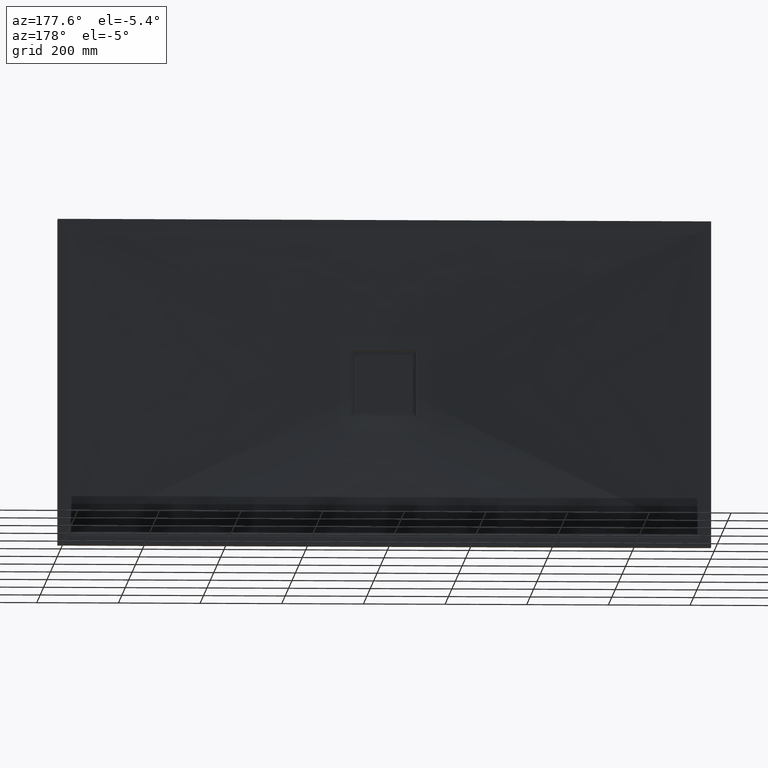
[diagram: clean part render]
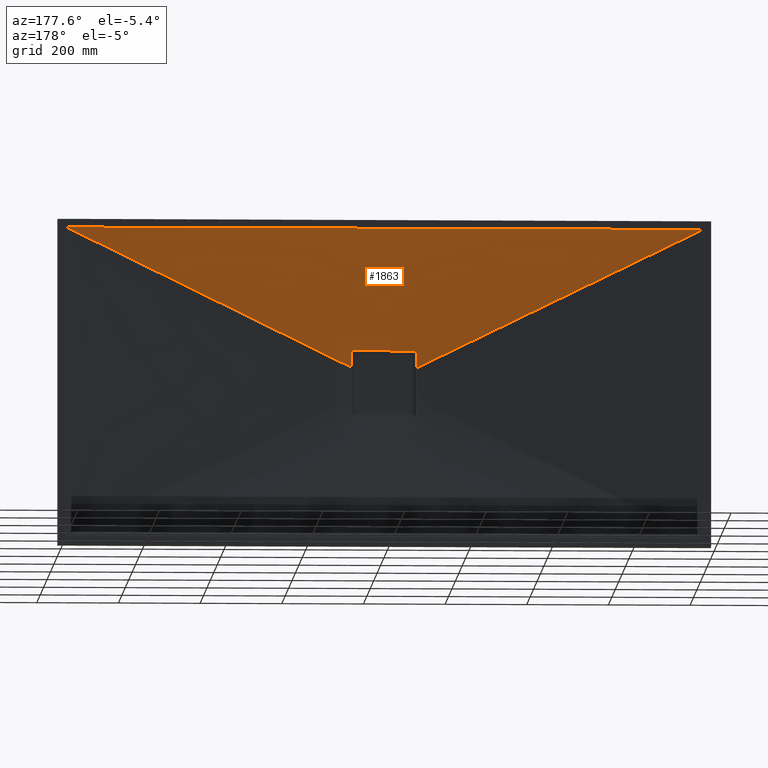
[diagram: same view with one face highlighted and labeled with its STEP entity id]
A machine part, auxiliary view. The second image highlights one B-rep face of the part: STEP entity #1863.
In plain terms, the highlighted face is a freeform B-spline surface patch.
Its self-contained STEP definition (entity closure, byte-faithful):
#2 = CARTESIAN_POINT ( 'NONE',  ( -520.0000000000002300, 35.00000000000000000, 380.0000000000000600 ) ) ;
#37 = CARTESIAN_POINT ( 'NONE',  ( -80.00000000000018500, 20.88082018124752500, 77.50000000000009900 ) ) ;
#57 = CARTESIAN_POINT ( 'NONE',  ( -16.51998364309794100, 20.00000000000000000, 78.38527294381197000 ) ) ;
#73 = CARTESIAN_POINT ( 'NONE',  ( 42.44147885884386500, 19.99999999999999300, 67.92007849769869700 ) ) ;
#88 = CARTESIAN_POINT ( 'NONE',  ( -79.48604226813608900, 20.91571099035990100, 79.02729349662880100 ) ) ;
#97 = CARTESIAN_POINT ( 'NONE',  ( -78.75163500503427400, 20.92348560418235300, 79.67027101366666400 ) ) ;
#122 = CARTESIAN_POINT ( 'NONE',  ( 77.83014303288021600, 20.91992136616199000, 80.00000000000015600 ) ) ;
#125 = CARTESIAN_POINT ( 'NONE',  ( -8.335427550194062000, 20.00000000000000000, 79.67233849711948300 ) ) ;
#192 = B_SPLINE_CURVE_WITH_KNOTS ( 'NONE', 3,
 ( #1780, #2440, #2584, #2344, #2364, #2315 ),
 .UNSPECIFIED., .F., .F.,
 ( 4, 2, 4 ),
 ( 0.0000000000000000000, 0.01926608808140745100, 0.03853217616281487400 ),
 .UNSPECIFIED. ) ;
#212 = CARTESIAN_POINT ( 'NONE',  ( -80.00000000000018500, 20.88082018124752500, 77.50000000000009900 ) ) ;
#220 = CARTESIAN_POINT ( 'NONE',  ( -79.66882854547495200, 20.91066941404018600, 78.75426155804942100 ) ) ;
#226 = CARTESIAN_POINT ( 'NONE',  ( -780.0000000000001100, 35.00000000000000000, 380.0000000000000600 ) ) ;
#254 = ORIENTED_EDGE ( 'NONE', *, *, #2616, .T. ) ;
#297 = CARTESIAN_POINT ( 'NONE',  ( 779.9999999999998900, 35.00000000000000000, 380.0000000000000600 ) ) ;
#358 = CARTESIAN_POINT ( 'NONE',  ( 162.4999999999999100, 35.00000000000000000, 380.0000000000000000 ) ) ;
#375 = CARTESIAN_POINT ( 'NONE',  ( 129.9999999999998900, 35.00000000000000000, 380.0000000000000000 ) ) ;
#398 = CARTESIAN_POINT ( 'NONE',  ( 227.4999999999999100, 35.00000000000000000, 380.0000000000000000 ) ) ;
#413 = CARTESIAN_POINT ( 'NONE',  ( 28.28534235702244700, 20.00000000000000000, 74.94325822128450900 ) ) ;
#422 = CARTESIAN_POINT ( 'NONE',  ( 20.53644059850280700, 20.00000000000000000, 77.42613998269745000 ) ) ;
#424 = CARTESIAN_POINT ( 'NONE',  ( -79.02331721310470400, 20.92217702405269700, 79.48901260097765900 ) ) ;
#426 = CARTESIAN_POINT ( 'NONE',  ( -79.15195886678516500, 20.92100926310206100, 79.38350850158094800 ) ) ;
#432 = EDGE_LOOP ( 'NONE', ( #2965, #2928, #2931, #3232, #930, #254, #1564, #1967 ) ) ;
#436 = CARTESIAN_POINT ( 'NONE',  ( -48.68330336269388400, 20.00000000000000000, 63.59522123992647400 ) ) ;
#444 = CARTESIAN_POINT ( 'NONE',  ( -77.50000000000017100, 20.91526528105310600, 80.00000000000009900 ) ) ;
#447 = EDGE_CURVE ( 'NONE', #3009, #1028, #1815, .T. ) ;
#451 = CARTESIAN_POINT ( 'NONE',  ( -51.57932262493466900, 19.99999999999999600, 61.25885752582712500 ) ) ;
#464 = CARTESIAN_POINT ( 'NONE',  ( -78.30544561150730900, 20.92295813301355900, 79.87235849780353200 ) ) ;
#468 = CARTESIAN_POINT ( 'NONE',  ( -455.0000000000001700, 35.00000000000000000, 380.0000000000000600 ) ) ;
#470 = CARTESIAN_POINT ( 'NONE',  ( -78.60808864571924900, 20.92364626502050500, 79.74699066051131500 ) ) ;
#511 = CARTESIAN_POINT ( 'NONE',  ( 16.51998364309758600, 20.00000000000000000, 78.38527294381197000 ) ) ;
#513 = CARTESIAN_POINT ( 'NONE',  ( -162.5000000000002000, 35.00000000000000700, 380.0000000000000000 ) ) ;
#553 = CARTESIAN_POINT ( 'NONE',  ( -617.5000000000001100, 35.00000000000000000, 380.0000000000001100 ) ) ;
#569 = CARTESIAN_POINT ( 'NONE',  ( 79.99999999999984400, 20.88082018124752500, 77.50000000000009900 ) ) ;
#585 = CARTESIAN_POINT ( 'NONE',  ( 4.167867337943023100, 20.00000000000000000, 80.00000000000012800 ) ) ;
#587 = EDGE_CURVE ( 'NONE', #839, #3152, #2786, .T. ) ;
#633 = CARTESIAN_POINT ( 'NONE',  ( 324.9999999999999400, 35.00000000000000000, 380.0000000000000000 ) ) ;
#664 = CARTESIAN_POINT ( 'NONE',  ( -715.0000000000001100, 35.00000000000000000, 380.0000000000001100 ) ) ;
#745 = VERTEX_POINT ( 'NONE', #226 ) ;
#746 = LINE ( 'NONE', #1229, #1884 ) ;
#774 = CARTESIAN_POINT ( 'NONE',  ( -79.38255669104955800, 20.91777674830625600, 79.15304345921769900 ) ) ;
#839 = VERTEX_POINT ( 'NONE', #297 ) ;
#881 = B_SPLINE_CURVE_WITH_KNOTS ( 'NONE', 3,
 ( #2580, #2382, #2503, #2448, #2489, #2494, #2483, #2485, #3105, #3111, #3091, #3098, #2071, #1782, #122, #3077 ),
 .UNSPECIFIED., .F., .F.,
 ( 4, 2, 2, 2, 2, 2, 2, 4 ),
 ( 0.0000000000000000000, 0.0004882323058036950900, 0.0009764646116073901900, 0.001464696917411085400, 0.001952929223214780400, 0.002441161529018475600, 0.002929393834822170800, 0.003905858446429598900 ),
 .UNSPECIFIED. ) ;
#892 = CARTESIAN_POINT ( 'NONE',  ( 32.49999999999985100, 35.00000000000000700, 380.0000000000000000 ) ) ;
#930 = ORIENTED_EDGE ( 'NONE', *, *, #1187, .F. ) ;
#932 = B_SPLINE_CURVE_WITH_KNOTS ( 'NONE', 3,
 ( #37, #2748, #1987, #1767, #1726, #1787 ),
 .UNSPECIFIED., .F., .F.,
 ( 4, 2, 4 ),
 ( 0.0000000000000000000, 0.01926608808140747500, 0.03853217616281492300 ),
 .UNSPECIFIED. ) ;
#941 = CARTESIAN_POINT ( 'NONE',  ( -77.50000000000017100, 20.91526528105310600, 80.00000000000009900 ) ) ;
#953 = EDGE_CURVE ( 'NONE', #2656, #3207, #932, .T. ) ;
#971 = CARTESIAN_POINT ( 'NONE',  ( -70.60675592568530600, 19.99999999999999600, 37.73149647661590900 ) ) ;
#974 = CARTESIAN_POINT ( 'NONE',  ( -65.63602154870628200, 19.99999999999999600, 45.84979169517546900 ) ) ;
#992 = CARTESIAN_POINT ( 'NONE',  ( 79.99999999999984400, 20.17118407334168900, 38.97435897435907700 ) ) ;
#1028 = VERTEX_POINT ( 'NONE', #941 ) ;
#1100 = CARTESIAN_POINT ( 'NONE',  ( -59.31540533946496700, 20.00000000000000700, 53.78992935039211400 ) ) ;
#1118 = CARTESIAN_POINT ( 'NONE',  ( -65.00000000000015600, 35.00000000000000700, 380.0000000000000000 ) ) ;
#1151 = DIRECTION ( 'NONE',  ( -0.8988268892732869100, -0.01904076927280637700, -0.4378900229792934700 ) ) ;
#1187 = EDGE_CURVE ( 'NONE', #745, #3207, #746, .T. ) ;
#1218 = CARTESIAN_POINT ( 'NONE',  ( -80.00000000000018500, 20.17118407334168500, 38.97435897435902800 ) ) ;
#1229 = CARTESIAN_POINT ( 'NONE',  ( -425.9595947534909900, 27.50000000000000400, 207.5187769311878900 ) ) ;
#1297 = DIRECTION ( 'NONE',  ( 0.8988268892732868000, -0.01904076927280638400, -0.4378900229792936400 ) ) ;
#1314 = CARTESIAN_POINT ( 'NONE',  ( 747.4999999999998900, 35.00000000000000000, 380.0000000000000600 ) ) ;
#1325 = CARTESIAN_POINT ( 'NONE',  ( -422.5000000000002300, 35.00000000000000000, 380.0000000000000600 ) ) ;
#1395 = CARTESIAN_POINT ( 'NONE',  ( -780.0000000000001100, 35.00000000000000000, 380.0000000000000600 ) ) ;
#1407 = CARTESIAN_POINT ( 'NONE',  ( 357.5000000000000000, 35.00000000000000000, 380.0000000000000600 ) ) ;
#1411 = CARTESIAN_POINT ( 'NONE',  ( 69.09643847232801800, 19.99999999999999600, 40.44716199775890400 ) ) ;
#1414 = EDGE_CURVE ( 'NONE', #3152, #1736, #192, .T. ) ;
#1435 = CARTESIAN_POINT ( 'NONE',  ( -63.68564301497443800, 20.00000000000000700, 48.53671480306883300 ) ) ;
#1437 = CARTESIAN_POINT ( 'NONE',  ( -32.50000000000015600, 35.00000000000000700, 380.0000000000000000 ) ) ;
#1438 = EDGE_CURVE ( 'NONE', #1736, #3009, #881, .T. ) ;
#1439 = CARTESIAN_POINT ( 'NONE',  ( -28.28534235702280600, 20.00000000000000000, 74.94325822128449500 ) ) ;
#1443 = B_SPLINE_CURVE_WITH_KNOTS ( 'NONE', 3,
 ( #444, #3004, #1825, #2342, #464, #470, #97, #424, #426, #774, #88, #220, #2057, #3274, #2245, #212 ),
 .UNSPECIFIED., .F., .F.,
 ( 4, 2, 2, 2, 2, 2, 2, 4 ),
 ( 2.775557561562891400E-017, 0.0004882322326047723100, 0.0009764644652095168700, 0.001464696697814261400, 0.001952928930419006000, 0.002441161163023750600, 0.002929393395628495000, 0.003905857860838022400 ),
 .UNSPECIFIED. ) ;
#1474 = CARTESIAN_POINT ( 'NONE',  ( -42.44147885884423500, 19.99999999999999600, 67.92007849769872500 ) ) ;
#1510 = CARTESIAN_POINT ( 'NONE',  ( -650.0000000000001100, 35.00000000000000000, 380.0000000000001100 ) ) ;
#1519 = CARTESIAN_POINT ( 'NONE',  ( 64.58391960340179600, 20.73014938383709400, 80.00000000000008500 ) ) ;
#1548 = EDGE_CURVE ( 'NONE', #1028, #2656, #1443, .T. ) ;
#1564 = ORIENTED_EDGE ( 'NONE', *, *, #587, .T. ) ;
#1574 = CARTESIAN_POINT ( 'NONE',  ( 779.9999999999998900, 35.00000000000000000, 380.0000000000000600 ) ) ;
#1608 = CARTESIAN_POINT ( 'NONE',  ( 649.9999999999998900, 35.00000000000000000, 380.0000000000000000 ) ) ;
#1619 = CARTESIAN_POINT ( 'NONE',  ( -71.04169101482081300, 20.82418222522698800, 80.00000000000014200 ) ) ;
#1637 = CARTESIAN_POINT ( 'NONE',  ( -71.91918950698179500, 20.00000000000000000, 35.03755386237573800 ) ) ;
#1652 = CARTESIAN_POINT ( 'NONE',  ( 714.9999999999998900, 35.00000000000000000, 380.0000000000000600 ) ) ;
#1654 = B_SPLINE_SURFACE_WITH_KNOTS ( 'NONE', 3, 1, ( 
 ( #1574, #1821 ),
 ( #1314, #2224 ),
 ( #1652, #1411 ),
 ( #1608, #2021 ),
 ( #2210, #2142 ),
 ( #2287, #2427 ),
 ( #2554, #2714 ),
 ( #2935, #3140 ),
 ( #3299, #2618 ),
 ( #1407, #73 ),
 ( #633, #2312 ),
 ( #1758, #2254 ),
 ( #398, #413 ),
 ( #358, #422 ),
 ( #375, #511 ),
 ( #2873, #2719 ),
 ( #892, #585 ),
 ( #1437, #1723 ),
 ( #1118, #125 ),
 ( #1963, #57 ),
 ( #513, #2135 ),
 ( #3183, #1439 ),
 ( #1674, #2705 ),
 ( #2558, #2785 ),
 ( #2729, #1474 ),
 ( #1325, #436 ),
 ( #468, #451 ),
 ( #2, #1805 ),
 ( #2633, #1100 ),
 ( #553, #1435 ),
 ( #1510, #974 ),
 ( #664, #1874 ),
 ( #2496, #971 ),
 ( #1395, #1637 ) ),
 .UNSPECIFIED., .F., .F., .F.,
 ( 4, 2, 2, 2, 2, 2, 2, 2, 2, 2, 2, 2, 2, 2, 2, 2, 4 ),
 ( 2, 2 ),
 ( 0.0000000000000000000, 0.06250000000000000000, 0.1250000000000000000, 0.1875000000000000000, 0.2500000000000000000, 0.3125000000000000000, 0.3750000000000000000, 0.4375000000000000000, 0.5000000000000000000, 0.5625000000000000000, 0.6250000000000000000, 0.6875000000000000000, 0.7500000000000000000, 0.8125000000000000000, 0.8750000000000000000, 0.9375000000000000000, 1.000000000000000000 ),
 ( 0.0000000000000000000, 1.000000000000000000 ),
 .UNSPECIFIED. ) ;
#1655 = CARTESIAN_POINT ( 'NONE',  ( -64.58342503299773800, 20.73014216491182900, 80.00000000000008500 ) ) ;
#1674 = CARTESIAN_POINT ( 'NONE',  ( -260.0000000000002300, 35.00000000000000700, 380.0000000000000000 ) ) ;
#1723 = CARTESIAN_POINT ( 'NONE',  ( -4.167867337943384600, 20.00000000000000000, 80.00000000000012800 ) ) ;
#1726 = CARTESIAN_POINT ( 'NONE',  ( -80.00000000000014200, 20.23647958024087100, 45.39627497638800700 ) ) ;
#1736 = VERTEX_POINT ( 'NONE', #569 ) ;
#1758 = CARTESIAN_POINT ( 'NONE',  ( 259.9999999999998900, 35.00000000000000000, 380.0000000000000000 ) ) ;
#1767 = CARTESIAN_POINT ( 'NONE',  ( -80.00000000000019900, 20.32500420699052100, 51.81776310176746100 ) ) ;
#1774 = CARTESIAN_POINT ( 'NONE',  ( 12.91947408764515400, 20.00000982222254100, 80.00000000000011400 ) ) ;
#1780 = CARTESIAN_POINT ( 'NONE',  ( 79.99999999999984400, 20.17118407334168900, 38.97435897435907700 ) ) ;
#1782 = CARTESIAN_POINT ( 'NONE',  ( 78.15822712927298700, 20.92263223277540600, 79.93365587166640300 ) ) ;
#1787 = CARTESIAN_POINT ( 'NONE',  ( -80.00000000000018500, 20.17118407334168500, 38.97435897435902800 ) ) ;
#1805 = CARTESIAN_POINT ( 'NONE',  ( -56.89525059378131300, 20.00000000000000000, 56.35605209458441300 ) ) ;
#1815 = B_SPLINE_CURVE_WITH_KNOTS ( 'NONE', 3,
 ( #2230, #2962, #1519, #2118, #2155, #2145, #1774, #2034, #1993, #1977, #1947, #1655, #1619, #2732 ),
 .UNSPECIFIED., .F., .F.,
 ( 4, 2, 2, 2, 2, 2, 4 ),
 ( 0.0000000000000000000, 0.01937604881219791300, 0.03875209762439582600, 0.07750419524879162400, 0.1162562928731874200, 0.1356323416853853200, 0.1550083904975831900 ),
 .UNSPECIFIED. ) ;
#1821 = CARTESIAN_POINT ( 'NONE',  ( 71.91918950698142500, 20.00000000000000000, 35.03755386237571700 ) ) ;
#1825 = CARTESIAN_POINT ( 'NONE',  ( -77.82738987331605100, 20.91941526584665200, 79.98381153245502200 ) ) ;
#1858 = CARTESIAN_POINT ( 'NONE',  ( 425.9595947534906500, 27.50000000000000400, 207.5187769311878900 ) ) ;
#1863 = ADVANCED_FACE ( 'NONE', ( #2195 ), #1654, .F. ) ;
#1874 = CARTESIAN_POINT ( 'NONE',  ( -69.09643847232840100, 20.00000000000000000, 40.44716199775891900 ) ) ;
#1884 = VECTOR ( 'NONE', #1297, 1000.000000000000100 ) ;
#1947 = CARTESIAN_POINT ( 'NONE',  ( -51.66692436919274200, 20.53990979900311900, 80.00000000000011400 ) ) ;
#1963 = CARTESIAN_POINT ( 'NONE',  ( -130.0000000000001700, 35.00000000000000700, 380.0000000000000000 ) ) ;
#1967 = ORIENTED_EDGE ( 'NONE', *, *, #1414, .T. ) ;
#1977 = CARTESIAN_POINT ( 'NONE',  ( -45.20869479708849100, 20.44336612708412200, 80.00000000000014200 ) ) ;
#1987 = CARTESIAN_POINT ( 'NONE',  ( -80.00000000000018500, 20.55955026306169100, 64.65968027067580700 ) ) ;
#1993 = CARTESIAN_POINT ( 'NONE',  ( -25.83379188199351300, 20.16846388635038400, 80.00000000000009900 ) ) ;
#2021 = CARTESIAN_POINT ( 'NONE',  ( 65.63602154870588400, 19.99999999999999300, 45.84979169517544100 ) ) ;
#2033 = VECTOR ( 'NONE', #1151, 1000.000000000000200 ) ;
#2034 = CARTESIAN_POINT ( 'NONE',  ( -12.91705562372942700, 19.99999017869683400, 80.00000000000011400 ) ) ;
#2057 = CARTESIAN_POINT ( 'NONE',  ( -79.74652486146145200, 20.90772418718537700, 78.60887397578555600 ) ) ;
#2066 = CARTESIAN_POINT ( 'NONE',  ( 77.49999999999984400, 20.91526528105310600, 80.00000000000009900 ) ) ;
#2071 = CARTESIAN_POINT ( 'NONE',  ( 78.60912615202195800, 20.92364416022802600, 79.74640271161537400 ) ) ;
#2118 = CARTESIAN_POINT ( 'NONE',  ( 51.66789955657382200, 20.53992422645193700, 80.00000000000007100 ) ) ;
#2135 = CARTESIAN_POINT ( 'NONE',  ( -20.53644059850316600, 20.00000000000000000, 77.42613998269745000 ) ) ;
#2142 = CARTESIAN_POINT ( 'NONE',  ( 63.68564301497407600, 20.00000000000000700, 48.53671480306879700 ) ) ;
#2145 = CARTESIAN_POINT ( 'NONE',  ( 25.83575296585127000, 20.16849003916328100, 80.00000000000011400 ) ) ;
#2155 = CARTESIAN_POINT ( 'NONE',  ( 45.20990639448779500, 20.44338415415033700, 80.00000000000014200 ) ) ;
#2195 = FACE_OUTER_BOUND ( 'NONE', #432, .T. ) ;
#2210 = CARTESIAN_POINT ( 'NONE',  ( 617.5000000000000000, 35.00000000000000000, 380.0000000000000000 ) ) ;
#2224 = CARTESIAN_POINT ( 'NONE',  ( 70.60675592568492200, 20.00000000000000000, 37.73149647661590200 ) ) ;
#2230 = CARTESIAN_POINT ( 'NONE',  ( 77.49999999999984400, 20.91526528105310600, 80.00000000000009900 ) ) ;
#2245 = CARTESIAN_POINT ( 'NONE',  ( -80.00000000000017100, 20.88981712303077400, 77.83004879686761500 ) ) ;
#2254 = CARTESIAN_POINT ( 'NONE',  ( 32.01744375276260300, 20.00000000000000000, 73.41996666027273500 ) ) ;
#2287 = CARTESIAN_POINT ( 'NONE',  ( 552.5000000000000000, 35.00000000000000000, 380.0000000000000000 ) ) ;
#2312 = CARTESIAN_POINT ( 'NONE',  ( 39.09556257958836100, 20.00000000000000000, 69.90811966747756400 ) ) ;
#2315 = CARTESIAN_POINT ( 'NONE',  ( 79.99999999999984400, 20.88082018124752500, 77.50000000000009900 ) ) ;
#2342 = CARTESIAN_POINT ( 'NONE',  ( -78.14675063949810900, 20.92209702544251500, 79.92037548083251900 ) ) ;
#2344 = CARTESIAN_POINT ( 'NONE',  ( 79.99999999999981500, 20.55955026306168400, 64.65968027067577900 ) ) ;
#2364 = CARTESIAN_POINT ( 'NONE',  ( 79.99999999999982900, 20.70581750273649700, 71.08010478641747900 ) ) ;
#2382 = CARTESIAN_POINT ( 'NONE',  ( 79.99999999999984400, 20.88531866984212800, 77.66502504785974300 ) ) ;
#2427 = CARTESIAN_POINT ( 'NONE',  ( 59.31540533946459000, 20.00000000000000400, 53.78992935039206500 ) ) ;
#2440 = CARTESIAN_POINT ( 'NONE',  ( 79.99999999999984400, 20.23647958024088200, 45.39627497638802800 ) ) ;
#2448 = CARTESIAN_POINT ( 'NONE',  ( 79.92041763625896100, 20.89740054680598300, 78.14658210755787600 ) ) ;
#2483 = CARTESIAN_POINT ( 'NONE',  ( 79.67042079298187200, 20.91061151295205200, 78.75137201943763900 ) ) ;
#2485 = CARTESIAN_POINT ( 'NONE',  ( 79.48922544385517600, 20.91563681333541400, 79.02303659941534900 ) ) ;
#2489 = CARTESIAN_POINT ( 'NONE',  ( 79.87242764546771000, 20.90109666377055900, 78.30523619665702000 ) ) ;
#2494 = CARTESIAN_POINT ( 'NONE',  ( 79.74711135334443700, 20.90770367966288000, 78.60783971361235000 ) ) ;
#2496 = CARTESIAN_POINT ( 'NONE',  ( -747.5000000000000000, 35.00000000000000000, 380.0000000000001100 ) ) ;
#2503 = CARTESIAN_POINT ( 'NONE',  ( 79.98382034224712800, 20.88952902318444400, 77.82730179218371800 ) ) ;
#2543 = CARTESIAN_POINT ( 'NONE',  ( -80.00000000000018500, 20.88082018124752500, 77.50000000000009900 ) ) ;
#2554 = CARTESIAN_POINT ( 'NONE',  ( 520.0000000000000000, 35.00000000000000000, 380.0000000000000000 ) ) ;
#2558 = CARTESIAN_POINT ( 'NONE',  ( -325.0000000000002300, 35.00000000000000700, 380.0000000000000000 ) ) ;
#2580 = CARTESIAN_POINT ( 'NONE',  ( 79.99999999999984400, 20.88082018124752500, 77.50000000000009900 ) ) ;
#2584 = CARTESIAN_POINT ( 'NONE',  ( 79.99999999999982900, 20.32500420699051700, 51.81776310176749700 ) ) ;
#2616 = EDGE_CURVE ( 'NONE', #745, #839, #3209, .T. ) ;
#2618 = CARTESIAN_POINT ( 'NONE',  ( 48.68330336269350800, 19.99999999999999600, 63.59522123992646000 ) ) ;
#2633 = CARTESIAN_POINT ( 'NONE',  ( -552.5000000000002300, 35.00000000000000000, 380.0000000000001100 ) ) ;
#2656 = VERTEX_POINT ( 'NONE', #2543 ) ;
#2677 = DIRECTION ( 'NONE',  ( 1.000000000000000000, 0.0000000000000000000, 0.0000000000000000000 ) ) ;
#2705 = CARTESIAN_POINT ( 'NONE',  ( -32.01744375276297200, 20.00000000000000000, 73.41996666027274900 ) ) ;
#2714 = CARTESIAN_POINT ( 'NONE',  ( 56.89525059378094300, 19.99999999999999600, 56.35605209458439200 ) ) ;
#2719 = CARTESIAN_POINT ( 'NONE',  ( 8.335427550193699600, 20.00000000000000000, 79.67233849711949700 ) ) ;
#2729 = CARTESIAN_POINT ( 'NONE',  ( -357.5000000000002300, 35.00000000000000700, 380.0000000000000600 ) ) ;
#2732 = CARTESIAN_POINT ( 'NONE',  ( -77.50000000000017100, 20.91526528105310600, 80.00000000000009900 ) ) ;
#2748 = CARTESIAN_POINT ( 'NONE',  ( -80.00000000000019900, 20.70581750273649700, 71.08010478641749300 ) ) ;
#2785 = CARTESIAN_POINT ( 'NONE',  ( -39.09556257958873000, 20.00000000000000000, 69.90811966747756400 ) ) ;
#2786 = LINE ( 'NONE', #1858, #2033 ) ;
#2873 = CARTESIAN_POINT ( 'NONE',  ( 64.99999999999985800, 35.00000000000000000, 380.0000000000000000 ) ) ;
#2880 = CARTESIAN_POINT ( 'NONE',  ( -780.0000000000001100, 35.00000000000000000, 380.0000000000000600 ) ) ;
#2928 = ORIENTED_EDGE ( 'NONE', *, *, #447, .T. ) ;
#2931 = ORIENTED_EDGE ( 'NONE', *, *, #1548, .T. ) ;
#2935 = CARTESIAN_POINT ( 'NONE',  ( 455.0000000000000000, 35.00000000000000000, 380.0000000000000000 ) ) ;
#2962 = CARTESIAN_POINT ( 'NONE',  ( 71.04194233863454100, 20.82418576970605500, 80.00000000000009900 ) ) ;
#2965 = ORIENTED_EDGE ( 'NONE', *, *, #1438, .T. ) ;
#3004 = CARTESIAN_POINT ( 'NONE',  ( -77.66507043163335300, 20.91759330830826300, 80.00000000000014200 ) ) ;
#3009 = VERTEX_POINT ( 'NONE', #2066 ) ;
#3055 = VECTOR ( 'NONE', #2677, 1000.000000000000000 ) ;
#3077 = CARTESIAN_POINT ( 'NONE',  ( 77.49999999999984400, 20.91526528105310600, 80.00000000000009900 ) ) ;
#3091 = CARTESIAN_POINT ( 'NONE',  ( 79.02756730855335800, 20.92214693808416500, 79.48583193665994900 ) ) ;
#3098 = CARTESIAN_POINT ( 'NONE',  ( 78.75455503439650300, 20.92348090553446100, 79.66865903924289700 ) ) ;
#3105 = CARTESIAN_POINT ( 'NONE',  ( 79.38374377257753200, 20.91775553067564200, 79.15169096535964900 ) ) ;
#3111 = CARTESIAN_POINT ( 'NONE',  ( 79.15330567327362100, 20.92099491071356000, 79.38232675072544000 ) ) ;
#3140 = CARTESIAN_POINT ( 'NONE',  ( 51.57932262493429200, 20.00000000000000000, 61.25885752582709600 ) ) ;
#3152 = VERTEX_POINT ( 'NONE', #992 ) ;
#3183 = CARTESIAN_POINT ( 'NONE',  ( -227.5000000000002000, 35.00000000000000700, 380.0000000000000000 ) ) ;
#3207 = VERTEX_POINT ( 'NONE', #1218 ) ;
#3209 = LINE ( 'NONE', #2880, #3055 ) ;
#3232 = ORIENTED_EDGE ( 'NONE', *, *, #953, .T. ) ;
#3274 = CARTESIAN_POINT ( 'NONE',  ( -79.93369622469808200, 20.89788703278221900, 78.15804595222755300 ) ) ;
#3299 = CARTESIAN_POINT ( 'NONE',  ( 422.5000000000000600, 35.00000000000000000, 380.0000000000000600 ) ) ;